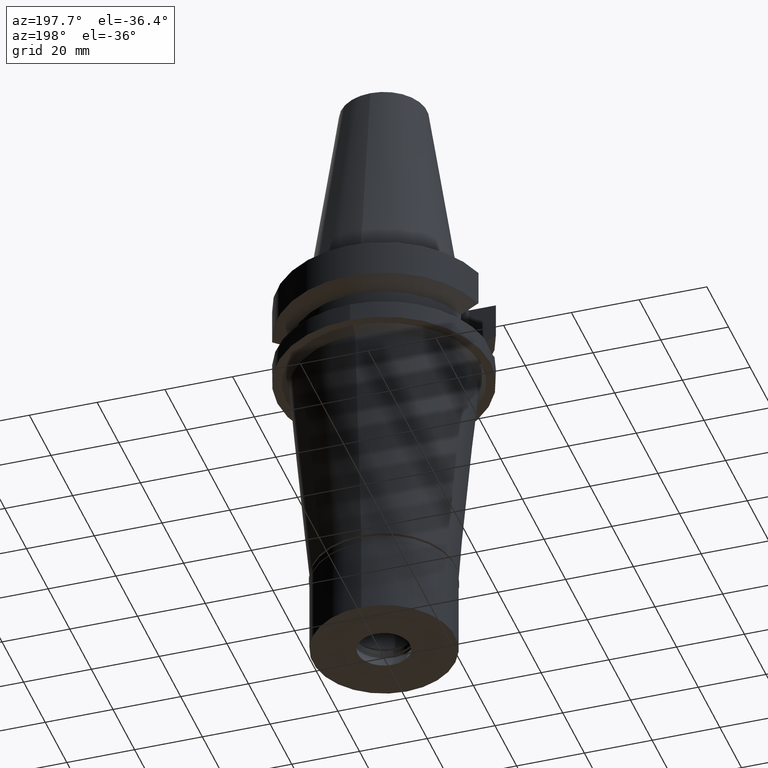
[diagram: clean part render]
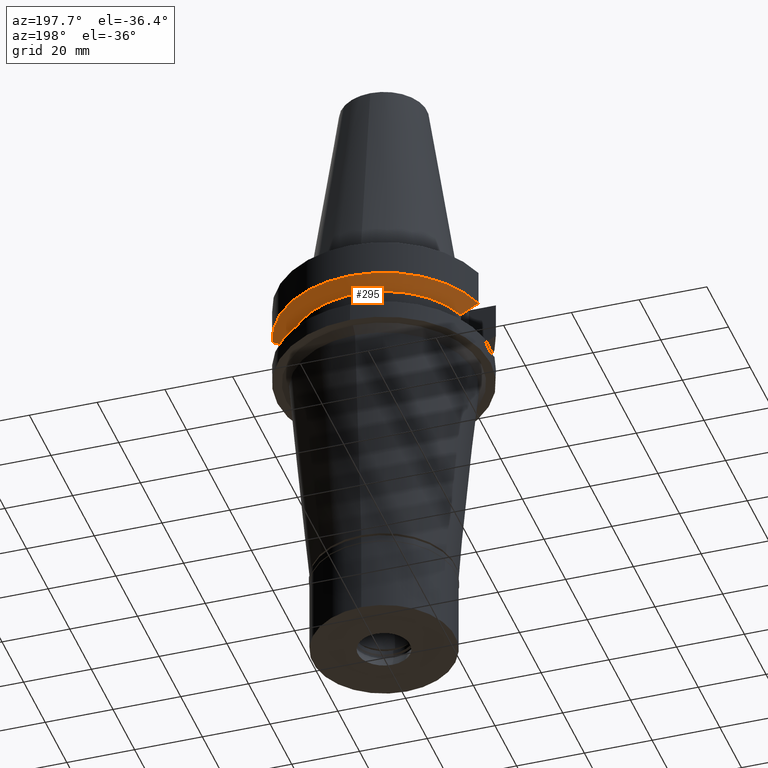
[diagram: same view with one face highlighted and labeled with its STEP entity id]
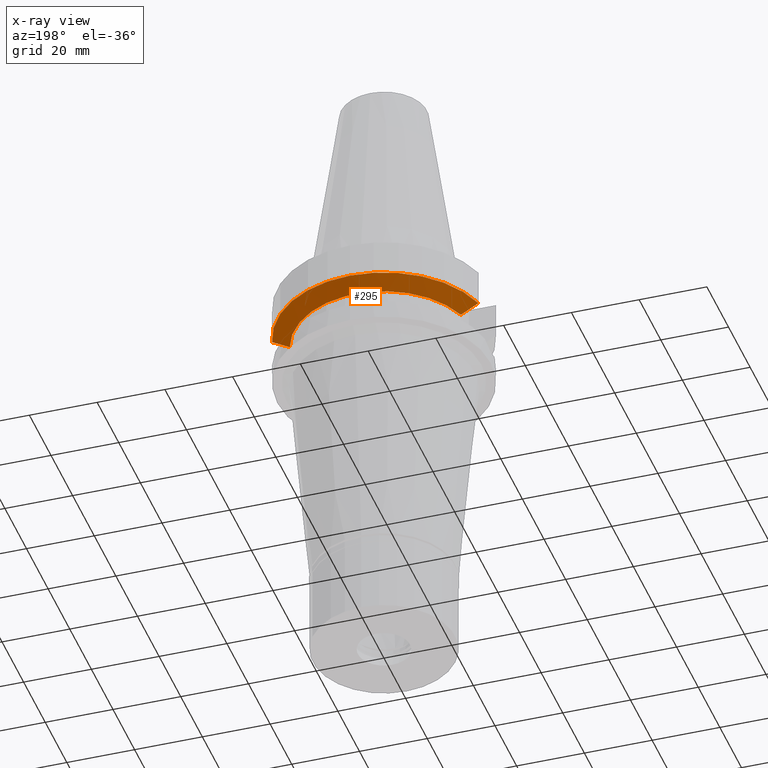
[diagram: x-ray of the same camera — body ghosted, the highlighted face saturated]
A machine part, auxiliary view. The second image highlights one B-rep face of the part: STEP entity #295.
The next image is the same camera in x-ray: the body ghosted, the highlighted face saturated — about 0% of this face is hidden behind the body in this view.
In plain terms, the highlighted conical surface has half-angle 60 deg.
Its self-contained STEP definition (entity closure, byte-faithful):
#35 = EDGE_CURVE ( 'NONE', #1943, #1637, #699, .T. ) ;
#268 = AXIS2_PLACEMENT_3D ( 'NONE', #321, #1284, #2522 ) ;
#295 = ADVANCED_FACE ( 'NONE', ( #874 ), #2626, .T. ) ;
#315 = ORIENTED_EDGE ( 'NONE', *, *, #2583, .T. ) ;
#321 = CARTESIAN_POINT ( 'NONE',  ( 0.0000000000000000000, 1.065333950388000029E-14, -11.56550565266999975 ) ) ;
#389 = CARTESIAN_POINT ( 'NONE',  ( 30.45402291373000025, 8.049999277646000095, -11.56551215876000072 ) ) ;
#562 = CARTESIAN_POINT ( 'NONE',  ( -30.45402162746999863, 8.050004143707999660, -11.56546832791000057 ) ) ;
#650 = DIRECTION ( 'NONE',  ( 0.0000000000000000000, 0.0000000000000000000, 1.000000000000000000 ) ) ;
#699 = CIRCLE ( 'NONE', #1588, 26.50000000000000711 ) ;
#774 = CARTESIAN_POINT ( 'NONE',  ( 0.0000000000000000000, 1.065333950388000029E-14, -14.45225699861000024 ) ) ;
#776 = CARTESIAN_POINT ( 'NONE',  ( -26.83758147828922347, 8.050003175838389424, -13.57772735505010253 ) ) ;
#786 = DIRECTION ( 'NONE',  ( 0.0000000000000000000, 1.000000000000000000, 0.0000000000000000000 ) ) ;
#803 = ORIENTED_EDGE ( 'NONE', *, *, #35, .F. ) ;
#874 = FACE_OUTER_BOUND ( 'NONE', #2249, .T. ) ;
#958 = CARTESIAN_POINT ( 'NONE',  ( 25.24772413115000091, 8.049995415974001034, -14.45229202654999945 ) ) ;
#1190 = EDGE_CURVE ( 'NONE', #1804, #1288, #1258, .T. ) ;
#1258 = CIRCLE ( 'NONE', #268, 31.50000000000000000 ) ;
#1284 = DIRECTION ( 'NONE',  ( 0.0000000000000000000, 0.0000000000000000000, 1.000000000000000000 ) ) ;
#1288 = VERTEX_POINT ( 'NONE', #562 ) ;
#1293 = ORIENTED_EDGE ( 'NONE', *, *, #2067, .T. ) ;
#1432 = ORIENTED_EDGE ( 'NONE', *, *, #1190, .F. ) ;
#1452 = CARTESIAN_POINT ( 'NONE',  ( -25.24772216383000156, 8.050001586207001125, -14.45224487859000106 ) ) ;
#1486 = AXIS2_PLACEMENT_3D ( 'NONE', #2817, #650, #786 ) ;
#1494 = DIRECTION ( 'NONE',  ( -0.9527442516822307583, 0.3037735849057093818, 0.0000000000000000000 ) ) ;
#1588 = AXIS2_PLACEMENT_3D ( 'NONE', #774, #1744, #1494 ) ;
#1618 = B_SPLINE_CURVE_WITH_KNOTS ( 'NONE', 3,
 ( #2639, #1888, #2899, #2382 ),
 .UNSPECIFIED., .F., .F.,
 ( 4, 4 ),
 ( 0.0000000000000000000, 1.000000000000000000 ),
 .UNSPECIFIED. ) ;
#1637 = VERTEX_POINT ( 'NONE', #958 ) ;
#1744 = DIRECTION ( 'NONE',  ( 0.0000000000000000000, 0.0000000000000000000, -1.000000000000000000 ) ) ;
#1745 = CARTESIAN_POINT ( 'NONE',  ( -28.57295870921156933, 8.050008282379952362, -12.61547480600547821 ) ) ;
#1804 = VERTEX_POINT ( 'NONE', #389 ) ;
#1888 = CARTESIAN_POINT ( 'NONE',  ( 28.57292329644293716, 8.049998556234843505, -12.61549605206096381 ) ) ;
#1943 = VERTEX_POINT ( 'NONE', #2433 ) ;
#2067 = EDGE_CURVE ( 'NONE', #1943, #1288, #2480, .T. ) ;
#2234 = CARTESIAN_POINT ( 'NONE',  ( -30.45402162746999863, 8.050004143707999660, -11.56546832791000057 ) ) ;
#2249 = EDGE_LOOP ( 'NONE', ( #1432, #315, #803, #1293 ) ) ;
#2382 = CARTESIAN_POINT ( 'NONE',  ( 25.24772413115000091, 8.049995415974001034, -14.45229202654999945 ) ) ;
#2433 = CARTESIAN_POINT ( 'NONE',  ( -25.24772216383000156, 8.050001586207001125, -14.45224487859000106 ) ) ;
#2480 = B_SPLINE_CURVE_WITH_KNOTS ( 'NONE', 3,
 ( #1452, #776, #1745, #2234 ),
 .UNSPECIFIED., .F., .F.,
 ( 4, 4 ),
 ( 0.0000000000000000000, 1.000000000000000000 ),
 .UNSPECIFIED. ) ;
#2522 = DIRECTION ( 'NONE',  ( 0.0000000000000000000, 1.000000000000000000, 0.0000000000000000000 ) ) ;
#2583 = EDGE_CURVE ( 'NONE', #1804, #1637, #1618, .T. ) ;
#2626 = CONICAL_SURFACE ( 'NONE', #1486, 29.00000000000000000, 1.047197551196400456 ) ;
#2639 = CARTESIAN_POINT ( 'NONE',  ( 30.45402291373000025, 8.049999277646000095, -11.56551215876000072 ) ) ;
#2817 = CARTESIAN_POINT ( 'NONE',  ( 0.0000000000000000000, 1.065333950388000029E-14, -13.00888132564000088 ) ) ;
#2899 = CARTESIAN_POINT ( 'NONE',  ( 26.83754616637038382, 8.049990821797473828, -13.57774887753143034 ) ) ;